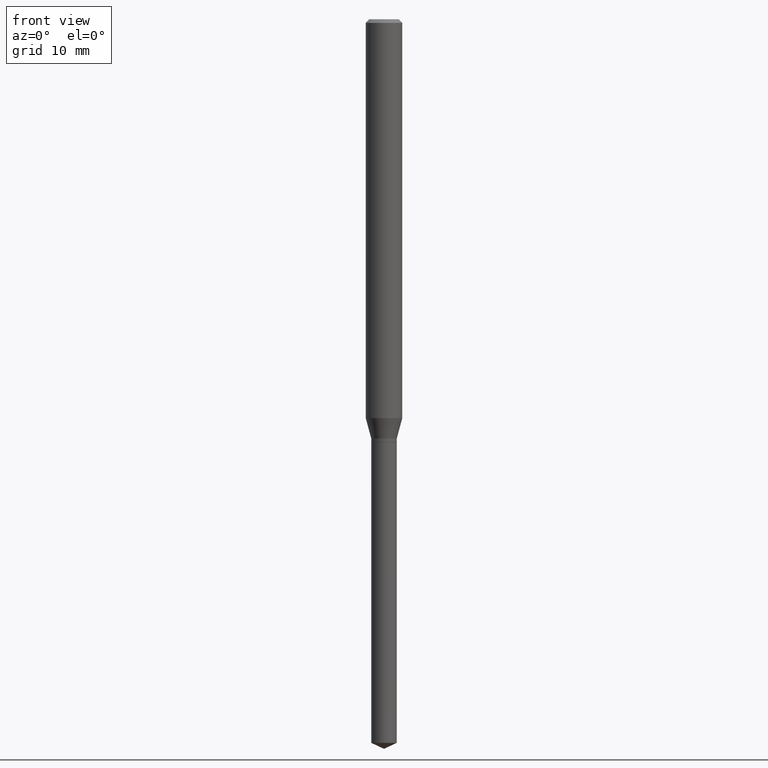
[diagram: clean part render]
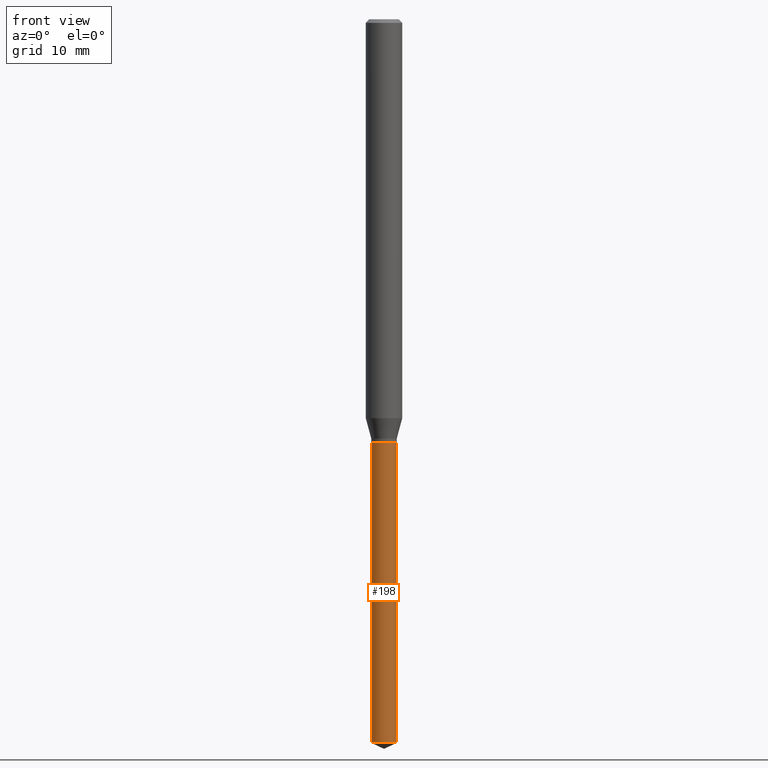
[diagram: same view with one face highlighted and labeled with its STEP entity id]
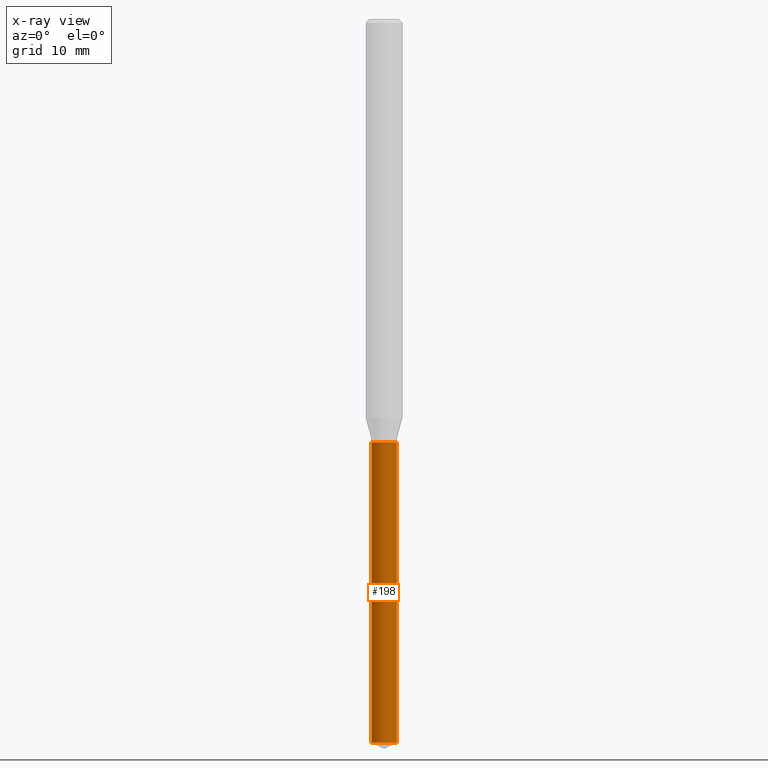
[diagram: x-ray of the same camera — body ghosted, the highlighted face saturated]
A machine part, front view. The second image highlights one B-rep face of the part: STEP entity #198.
The next image is the same camera in x-ray: the body ghosted, the highlighted face saturated — about 0% of this face is hidden behind the body in this view.
In plain terms, the highlighted cylindrical surface (edge-blend (fillet) strip) has radius 1.0503 mm, axis along (-0, 0, 1).
Its self-contained STEP definition (entity closure, byte-faithful):
#4 = LINE ( 'NONE', #301, #393 ) ;
#6 = VERTEX_POINT ( 'NONE', #345 ) ;
#7 = AXIS2_PLACEMENT_3D ( 'NONE', #36, #490, #155 ) ;
#12 = VECTOR ( 'NONE', #134, 39.37007874015748143 ) ;
#17 = CARTESIAN_POINT ( 'NONE',  ( -0.04134999999999999787, -6.187459122716950481E-15, -1.369900000000000118 ) ) ;
#36 = CARTESIAN_POINT ( 'NONE',  ( 3.350047717593018824E-29, -4.782980286081224804E-15, -1.369900000000000118 ) ) ;
#52 = CARTESIAN_POINT ( 'NONE',  ( 3.350047717593018824E-29, -4.782980286081224804E-15, -1.369900000000000118 ) ) ;
#73 = EDGE_CURVE ( 'NONE', #84, #419, #178, .T. ) ;
#84 = VERTEX_POINT ( 'NONE', #17 ) ;
#108 = AXIS2_PLACEMENT_3D ( 'NONE', #52, #470, #320 ) ;
#119 = CARTESIAN_POINT ( 'NONE',  ( -0.04135000000000000481, -7.885747380589476781E-15, -2.342718178335291057 ) ) ;
#134 = DIRECTION ( 'NONE',  ( -2.445468806185136877E-29, 3.491481338843145188E-15, 1.000000000000000000 ) ) ;
#143 = EDGE_CURVE ( 'NONE', #192, #84, #4, .T. ) ;
#155 = DIRECTION ( 'NONE',  ( 1.000000000000000000, -6.982962677686273021E-15, 0.000000000000000000 ) ) ;
#175 = CARTESIAN_POINT ( 'NONE',  ( 0.04134999999999999787, -5.071725792803552539E-15, -1.369900000000000118 ) ) ;
#178 = CIRCLE ( 'NONE', #108, 0.04134999999999999787 ) ;
#187 = ORIENTED_EDGE ( 'NONE', *, *, #143, .F. ) ;
#192 = VERTEX_POINT ( 'NONE', #119 ) ;
#193 = CYLINDRICAL_SURFACE ( 'NONE', #7, 0.04134999999999999787 ) ;
#198 = ADVANCED_FACE ( 'NONE', ( #485 ), #193, .T. ) ;
#254 = DIRECTION ( 'NONE',  ( -2.445468806185136597E-29, 3.491481338843145583E-15, 1.000000000000000000 ) ) ;
#269 = ORIENTED_EDGE ( 'NONE', *, *, #73, .F. ) ;
#278 = CARTESIAN_POINT ( 'NONE',  ( 5.729044226801822300E-29, -8.179556801826278193E-15, -2.342718178335291057 ) ) ;
#290 = CARTESIAN_POINT ( 'NONE',  ( 0.04134999999999999787, -5.071725792803552539E-15, -1.369900000000000118 ) ) ;
#300 = EDGE_CURVE ( 'NONE', #192, #6, #366, .T. ) ;
#301 = CARTESIAN_POINT ( 'NONE',  ( -0.04134999999999999787, -4.489170864844424181E-15, -1.369900000000000118 ) ) ;
#313 = ORIENTED_EDGE ( 'NONE', *, *, #367, .T. ) ;
#314 = DIRECTION ( 'NONE',  ( 1.000000000000000000, -6.982962677686273021E-15, 0.000000000000000000 ) ) ;
#320 = DIRECTION ( 'NONE',  ( 1.000000000000000000, -6.982962677686273021E-15, 0.000000000000000000 ) ) ;
#326 = LINE ( 'NONE', #175, #12 ) ;
#340 = DIRECTION ( 'NONE',  ( -2.445468806185136877E-29, 3.491481338843145188E-15, 1.000000000000000000 ) ) ;
#345 = CARTESIAN_POINT ( 'NONE',  ( 0.04135000000000000481, -8.468302308548605138E-15, -2.342718178335291057 ) ) ;
#350 = EDGE_LOOP ( 'NONE', ( #187, #442, #313, #269 ) ) ;
#366 = CIRCLE ( 'NONE', #437, 0.04134999999999999787 ) ;
#367 = EDGE_CURVE ( 'NONE', #6, #419, #326, .T. ) ;
#393 = VECTOR ( 'NONE', #340, 39.37007874015748143 ) ;
#419 = VERTEX_POINT ( 'NONE', #290 ) ;
#437 = AXIS2_PLACEMENT_3D ( 'NONE', #278, #254, #314 ) ;
#442 = ORIENTED_EDGE ( 'NONE', *, *, #300, .T. ) ;
#470 = DIRECTION ( 'NONE',  ( -2.445468806185136597E-29, 3.491481338843145583E-15, 1.000000000000000000 ) ) ;
#485 = FACE_OUTER_BOUND ( 'NONE', #350, .T. ) ;
#490 = DIRECTION ( 'NONE',  ( -2.445468806185136597E-29, 3.491481338843145583E-15, 1.000000000000000000 ) ) ;